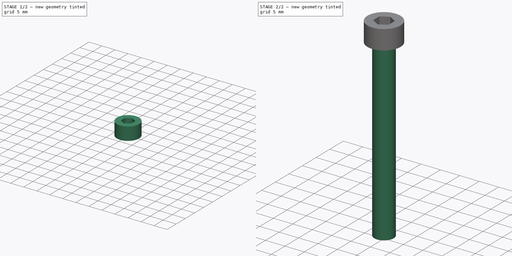
[diagram: build sequence overview — one tinted view per stage of 2, left to right]
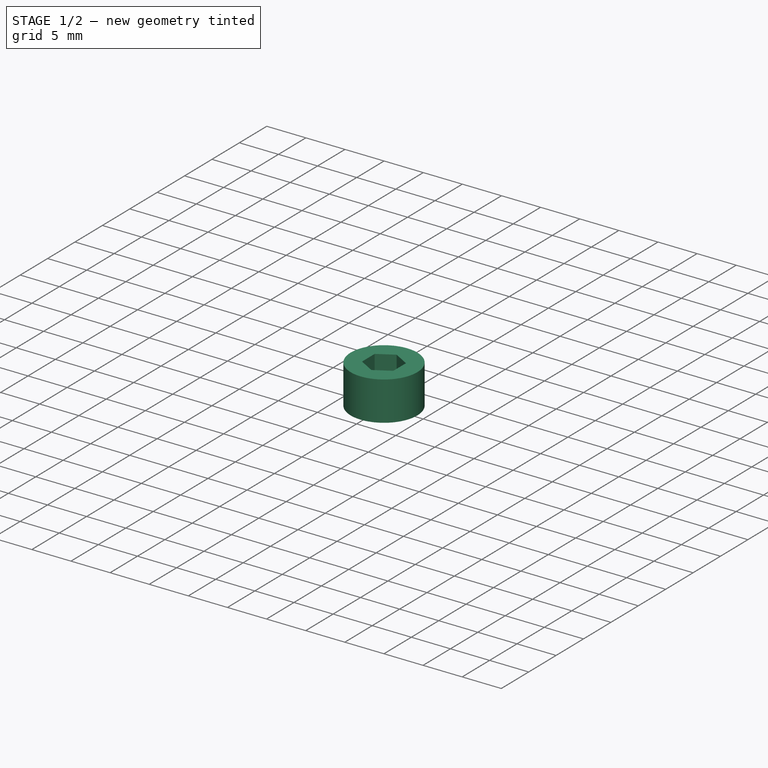
[diagram: stage 1 of 2 — iso view after this stage's code; geometry added in this stage tinted green]
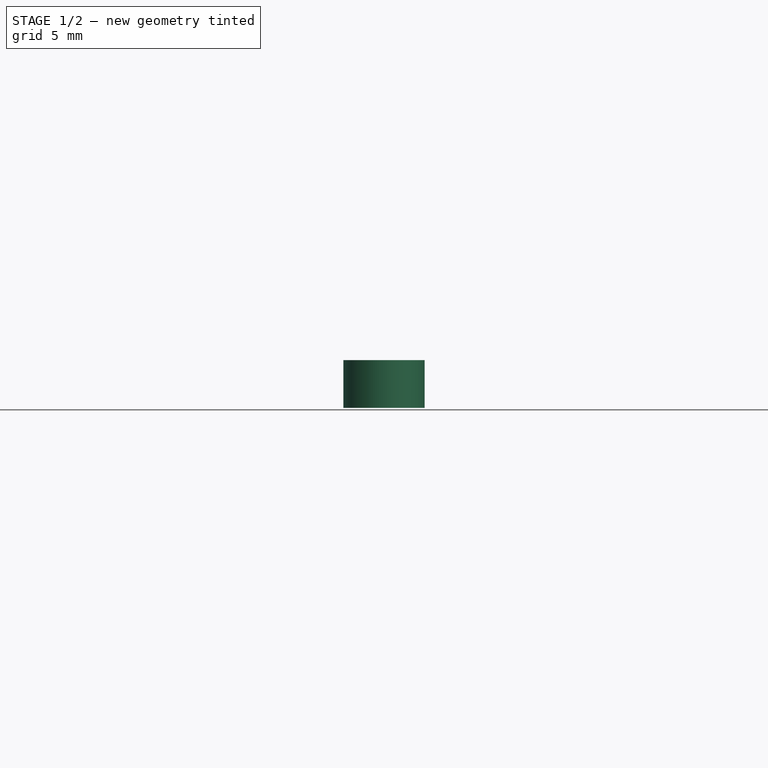
[diagram: stage 1 of 2 — front view after this stage's code; geometry added in this stage tinted green]
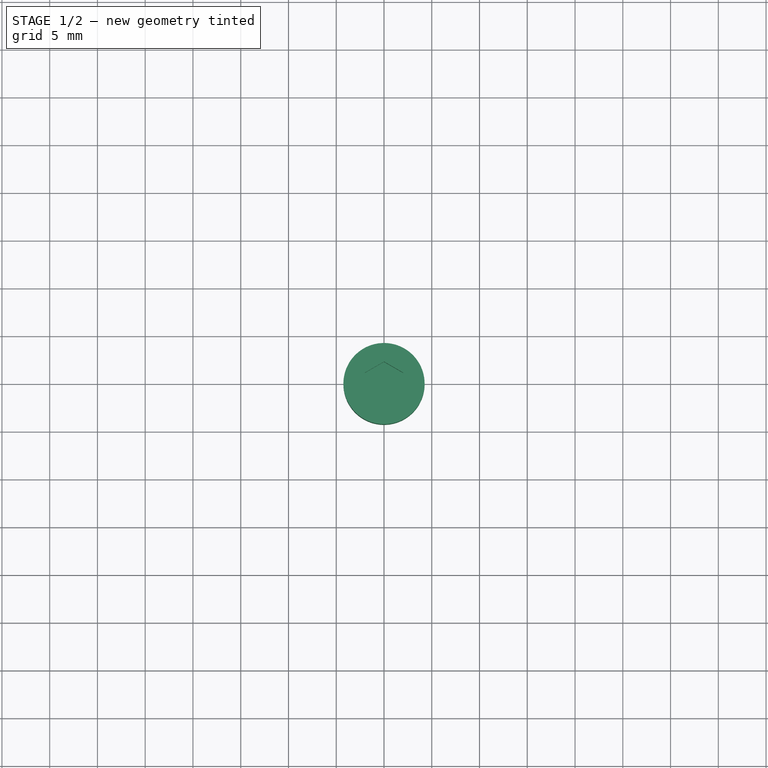
[diagram: stage 1 of 2 — top view after this stage's code; geometry added in this stage tinted green]
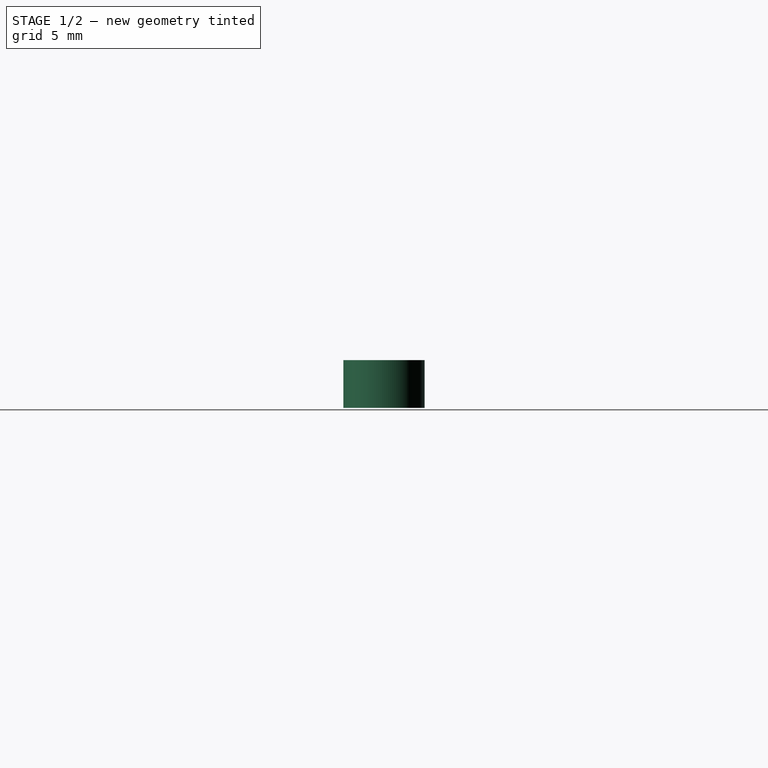
[diagram: stage 1 of 2 — right view after this stage's code; geometry added in this stage tinted green]
FCSTD DOCUMENT  (FreeCAD 0.20R29177 (Git))
Label: visTHCM
License: All rights reserved
LicenseURL: http://en.wikipedia.org/wiki/All_rights_reserved
objects: Sketcher::SketchObject×3, PartDesign::Pad×2, Spreadsheet::Sheet×1, PartDesign::Pocket×1, PartDesign::Body×1, App::Part×1
note: 10 computed .brp shape members not serialized (recipe doc carries the construction recipe); baked Part::Feature solids carry a one-line shape summary decoded from their .brp

FEATURE [Spreadsheet::Sheet] Spreadsheet  label="visTHCSp"
  cells = B2=diam; C2=teteHaut; D2=teteDiam; E2=hexaLarg; F2=hexaProf; A3==hiddenref(Part.Diam.String); B3(Diam)==.B6; C3(teteHaut)==.C6; D3(teteDiam)==.D6; E3(hexaLarg)==.E6; F3(hexaProf)==.F6; A4=M3; B4=3; C4=3; D4=5.5; E4=2.5; F4=1.3; A5=M4; B5=4; C5=4; D5=7; E5=3; F5=2; A6=M5; B6=5; C6=5; D6=8.5; E6=4; F6=2.5; A7=M6; B7=6; C7=6; D7=10; E7=5; F7=3; A8=M8; B8=8; C8=8; D8=13; E8=6; F8=4; A9=M10; B9=10; C9=10; D9=16; E9=8; F9=5; A10=M12; B10=12; C10=12; D10=18; E10=10; F10=6; A11=M16; B11=16; C11=16; D11=24; E11=14; F11=8; A12=M18; B12=18; C12=18; D12=26; E12=16; F12=10; B16=long; A17==hiddenref(Part.long.String); B17(long)==.B30; A18=x6; B18==.B20; A19=x8; B19==.B20; A20=x10; B20=10; A21=x12; B21=12; A22=x16; B22=16; A23=x18; B23=18; A24=x20; B24=20; A25=x22; B25=22; A26=x25; B26=25; A27=x30; B27=30; A28=x35; B28=35; A29=x40; B29=40; A30=x45; B30=45; A31=x50; B31=50; A32=x55; B32=55; A33=x60; B33=60; A34=x70; B34=70; A35=x80; B35=80; A36=x90; B36=90; A37=x100; B37=100
  expr: .cells.Bind.B17.ZZ17 = tuple(.cells; <<B>> + str(hiddenref(Part.long) + 18); <<ZZ>> + str(hiddenref(Part.long) + 18))
  expr: .cells.Bind.B3.ZZ3 = tuple(.cells; <<B>> + str(hiddenref(Part.Diam) + 4); <<ZZ>> + str(hiddenref(Part.Diam) + 4))
FEATURE [Sketcher::SketchObject] Sketch  label="teteSk"
  FullyConstrained = true
  MapMode = 5
  Support = -> [XY_Plane001]
  expr: Constraints[1] = Spreadsheet.teteDiam
  sketch-geometry (1):
    g0: Circle CenterX=0 CenterY=0 CenterZ=0 NormalX=0 NormalY=0 NormalZ=1 AngleXU=0 Radius=4.25
  constraints (2):
    c: Coincident(g0,g-1)
    c: Diameter(g0) = 8.5
FEATURE [PartDesign::Pad] Pad  label="tete"
  Direction = (0,0,1)
  Length = 5
  Length2 = 10
  Profile = -> Sketch
  ReferenceAxis = -> Sketch [N_Axis]
  Type = 0
  expr: Length = Spreadsheet.teteHaut
FEATURE [Sketcher::SketchObject] Sketch001
  AttachmentOffset = pos=(0,0,5) rot=(0,0,1;0rad)
  FullyConstrained = true
  MapMode = 5
  Placement = pos=(0,0,5) rot=(0,0,1;0rad)
  Support = -> [XY_Plane001]
  expr: .AttachmentOffset.Base.z = <<visTHCSp>>.teteHaut
  expr: Constraints[19] = <<visTHCSp>>.hexaLarg
  sketch-geometry (7):
    g0: LineSegment StartX=0 StartY=-2.3094 StartZ=0 EndX=2 EndY=-1.1547 EndZ=0
    g1: LineSegment StartX=2 StartY=-1.1547 StartZ=0 EndX=2 EndY=1.1547 EndZ=0
    g2: LineSegment StartX=2 StartY=1.1547 StartZ=0 EndX=4e-16 EndY=2.3094 EndZ=0
    g3: LineSegment StartX=4e-16 StartY=2.3094 StartZ=0 EndX=-2 EndY=1.1547 EndZ=0
    g4: LineSegment StartX=-2 StartY=1.1547 StartZ=0 EndX=-2 EndY=-1.1547 EndZ=0
    g5: LineSegment StartX=-2 StartY=-1.1547 StartZ=0 EndX=0 EndY=-2.3094 EndZ=0
    g6: Circle CenterX=0 CenterY=0 CenterZ=0 NormalX=0 NormalY=0 NormalZ=1 AngleXU=0 Radius=2.3094
  constraints (16):
    c: Coincident(g0,g1)
    c: Coincident(g1,g2)
    c: Coincident(g2,g3)
    c: Coincident(g3,g4)
    c: Coincident(g4,g5)
    c: Coincident(g5,g0)
    c: Equal(g0, g1-g5) x5
    c: PointOnObject(g0,g6)
    c: PointOnObject(g1,g6)
    c: PointOnObject(g2,g6)
    c: PointOnObject(g3,g6)
    c: PointOnObject(g4,g6)
    c: PointOnObject(g5,g6)
    c: Coincident(g6,g-1)
    c: PointOnObject(g5,g-2)
    c: DistanceX(g4,g0) = 4
FEATURE [PartDesign::Pocket] Pocket  label="hexa"
  BaseFeature = -> Pad
  Direction = (0,0,-1)
  Length = 2.5
  Length2 = 5
  Profile = -> Sketch001
  ReferenceAxis = -> Sketch001 [N_Axis]
  Type = 0
  expr: Length = <<visTHCSp>>.hexaProf
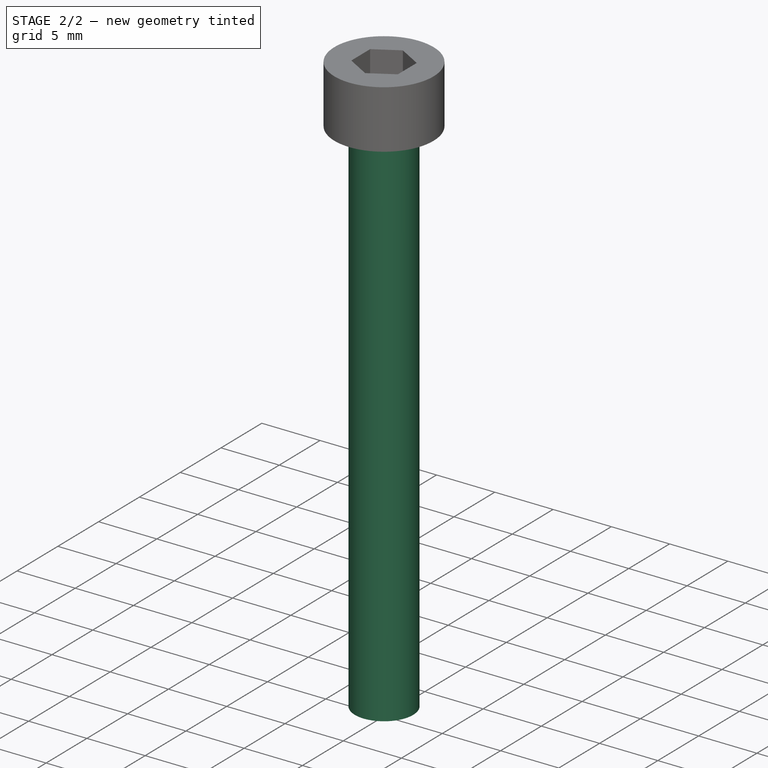
[diagram: stage 2 of 2 — iso view after this stage's code; geometry added in this stage tinted green]
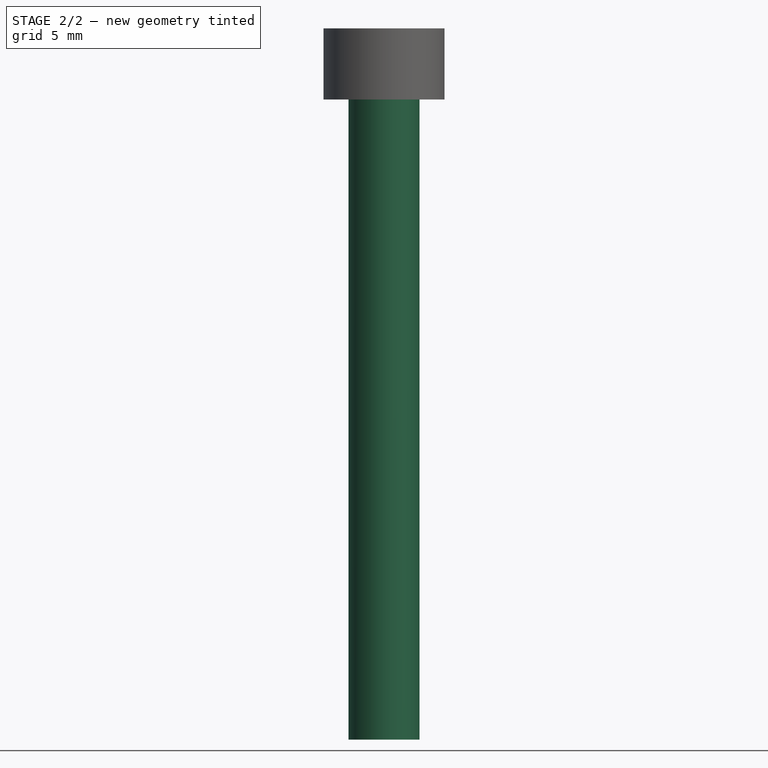
[diagram: stage 2 of 2 — front view after this stage's code; geometry added in this stage tinted green]
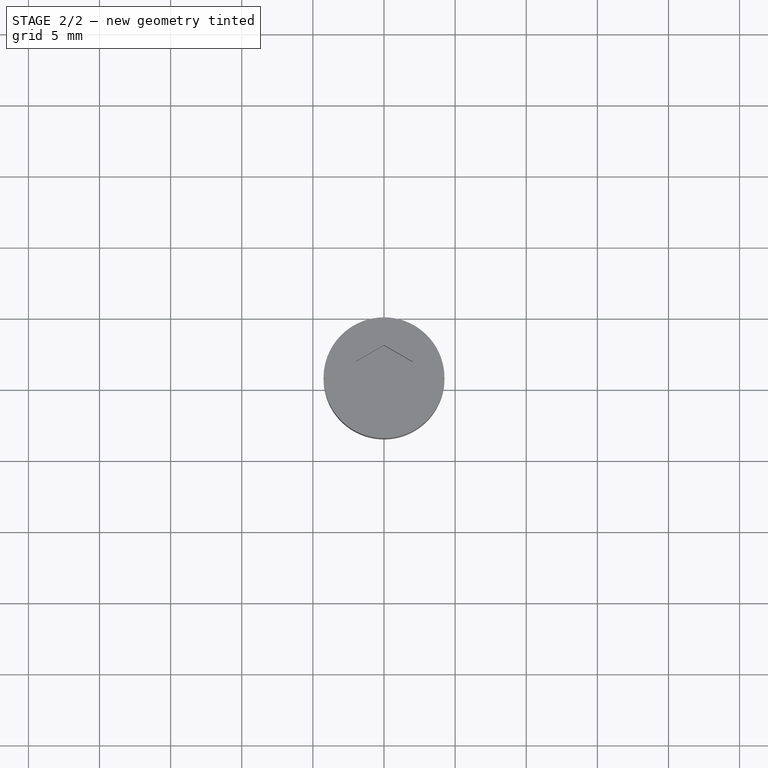
[diagram: stage 2 of 2 — top view after this stage's code; geometry added in this stage tinted green]
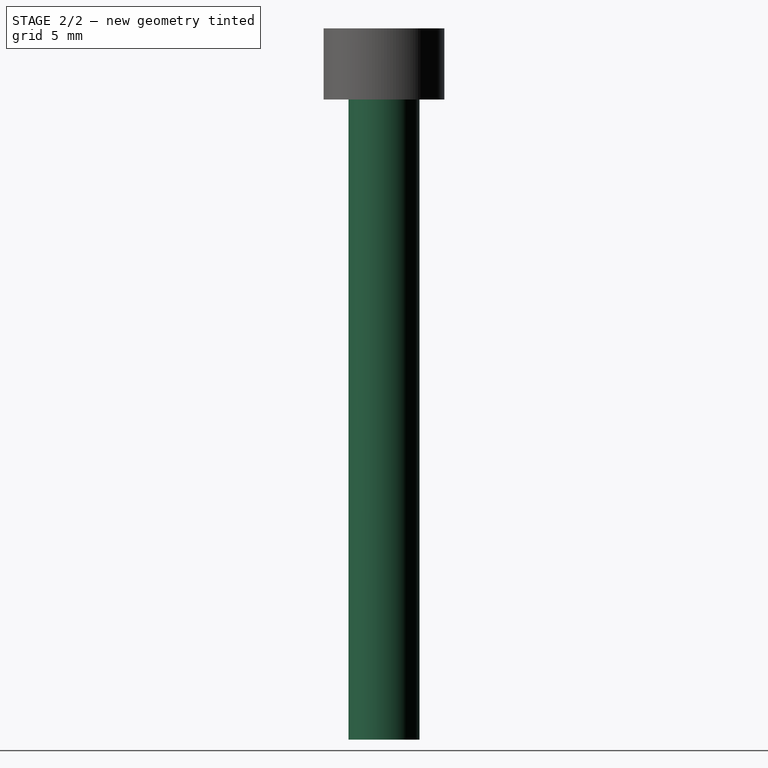
[diagram: stage 2 of 2 — right view after this stage's code; geometry added in this stage tinted green]
FEATURE [Sketcher::SketchObject] Sketch002
  FullyConstrained = true
  MapMode = 5
  Support = -> [XY_Plane001]
  expr: Constraints[1] = <<visTHCSp>>.Diam
  sketch-geometry (1):
    g0: Circle CenterX=0 CenterY=0 CenterZ=0 NormalX=0 NormalY=0 NormalZ=1 AngleXU=0 Radius=2.5
  constraints (2):
    c: Coincident(g0,g-1)
    c: Diameter(g0) = 5
FEATURE [PartDesign::Pad] Pad001
  BaseFeature = -> Pocket
  Direction = (0,0,1)
  Length = 45
  Length2 = 10
  Profile = -> Sketch002
  ReferenceAxis = -> Sketch002 [N_Axis]
  Reversed = true
  Type = 0
  expr: Length = <<visTHCSp>>.long
FEATURE [PartDesign::Body] Body  label="visTHCBdy"
  Group = -> [Sketch,Pad,Sketch001,Pocket,Sketch002,Pad001]
  Origin = -> Origin001
  Tip = -> Pad001
FEATURE [App::Part] Part  label="visTHCPrt"
  Diam = 2
  Group = -> [Body,Spreadsheet]
  Origin = -> Origin
  long = 12
  expr: .Diam.Enum = Spreadsheet.cells[<<A4:|>>]
  expr: .long.Enum = Spreadsheet.cells[<<A18:|>>]
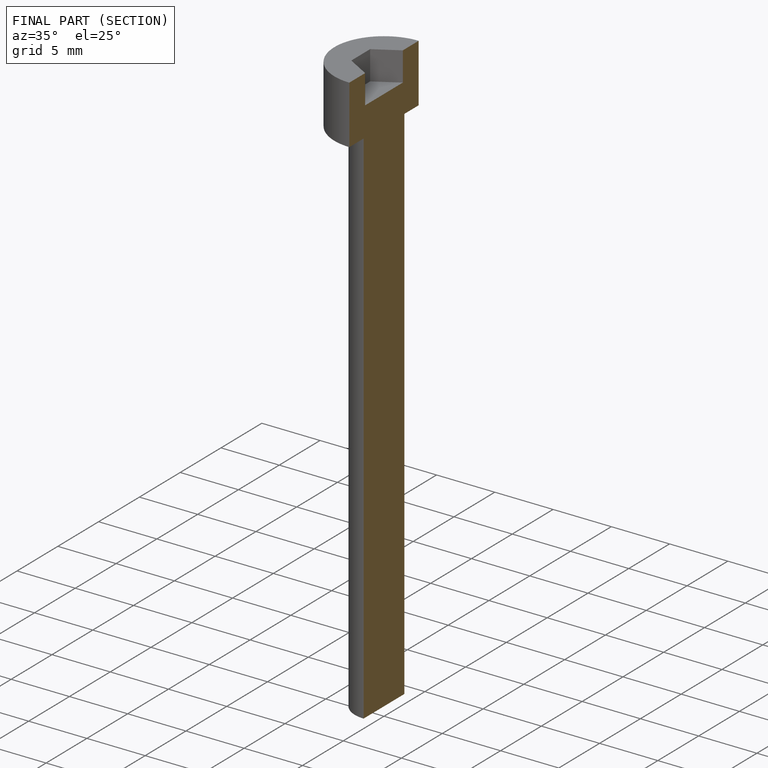
[diagram: finished part — half-section view (interior)]
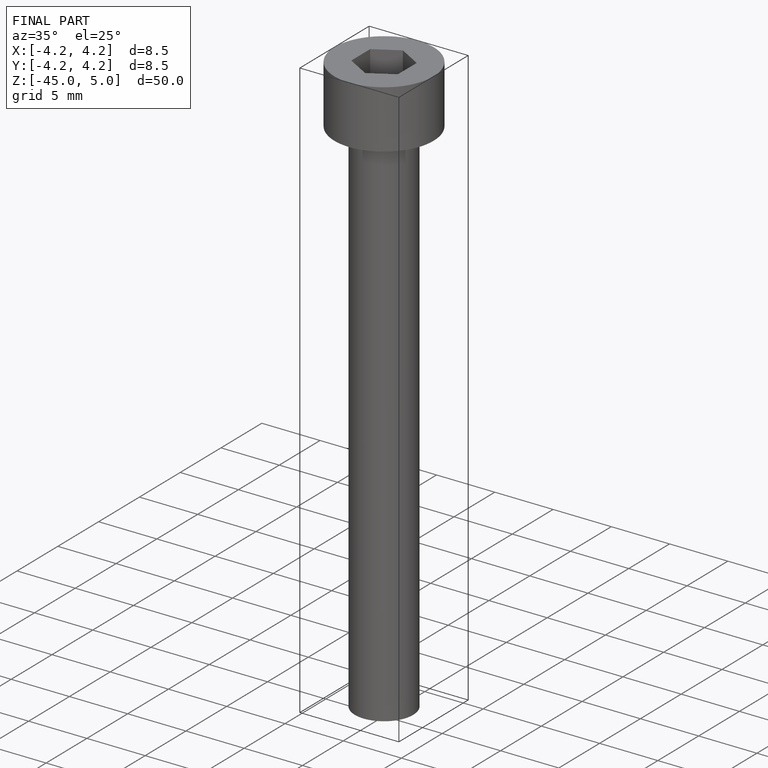
[diagram: finished part — iso view with bounding-box wireframe]
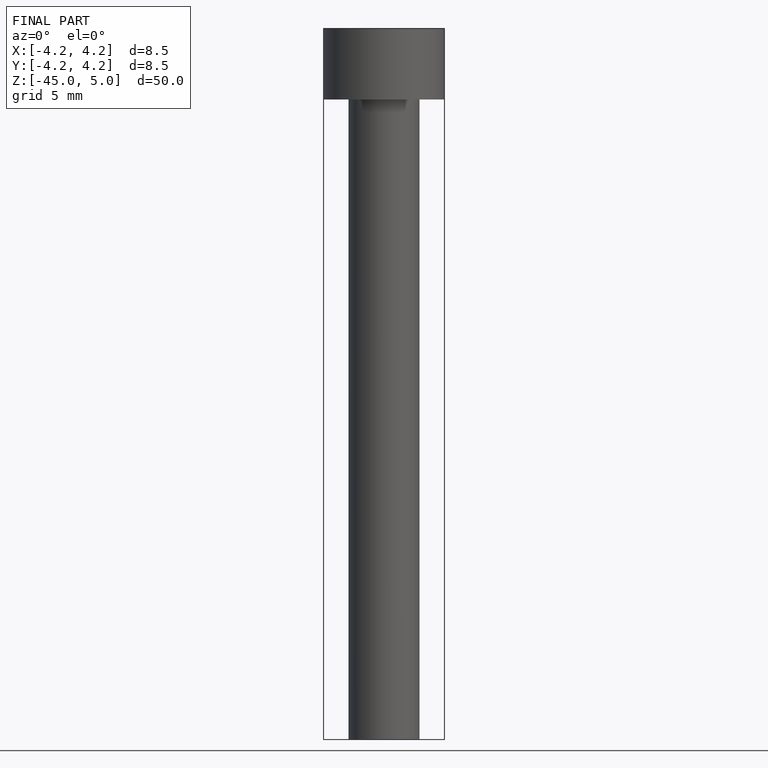
[diagram: finished part — front view with bounding-box wireframe]
